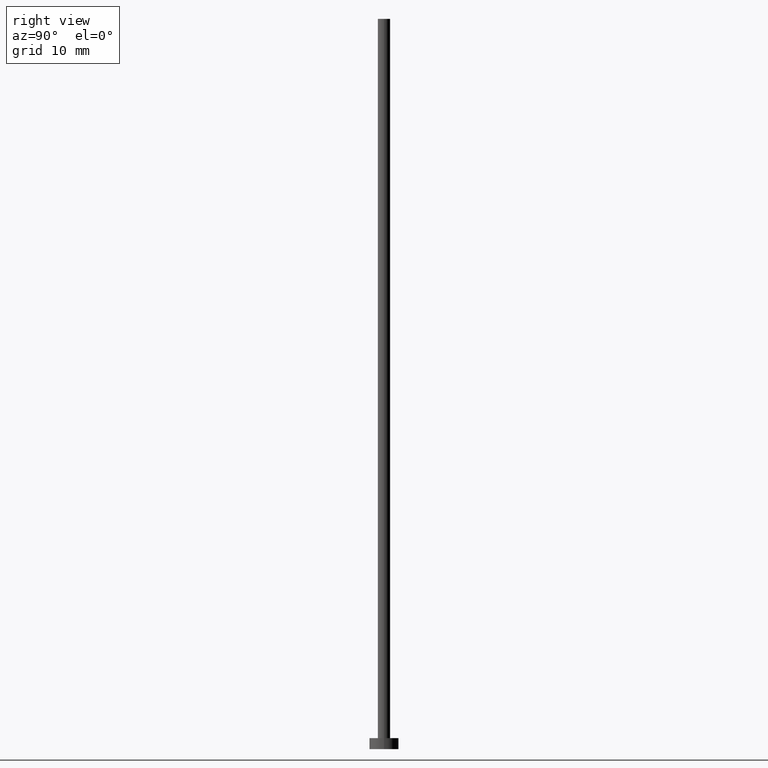
[diagram: clean part render]
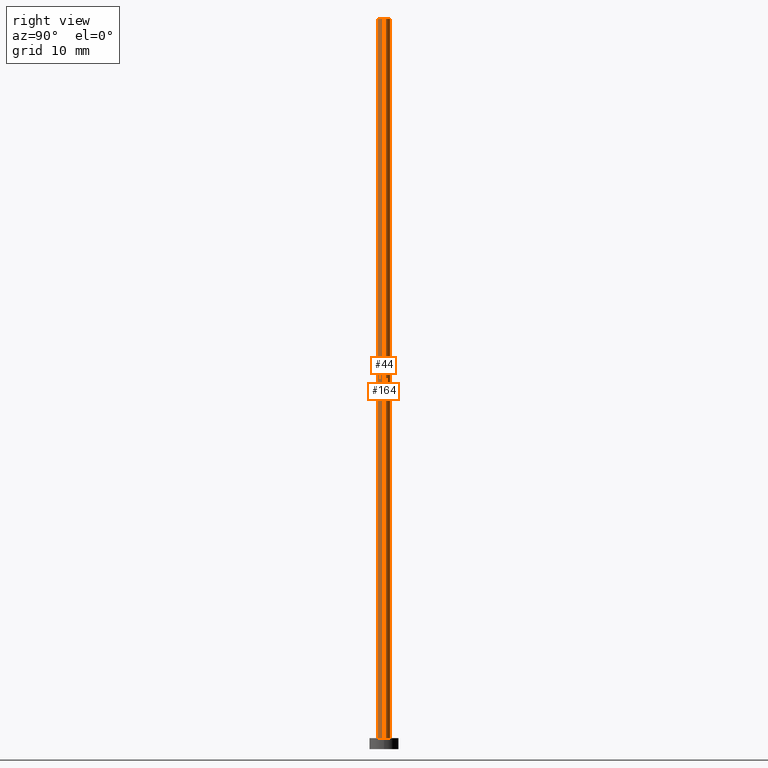
[diagram: same view with one multi-face feature highlighted, each face labeled with its STEP entity id]
A machine part, right view. The highlighted faces form ONE feature: a constant-radius fillet chain: 2 tangent blend faces with common blend radius 0.85 mm. The faces share edges in the B-rep.
Their STEP definitions:
[1] entity #44 (Cylinder):
#8 = CARTESIAN_POINT ( 'NONE',  ( 0.8499999999999999778, 1.040949779275250140E-16, 100.0000000000000000 ) ) ;
#13 = EDGE_LOOP ( 'NONE', ( #127, #93, #165, #30 ) ) ;
#20 = DIRECTION ( 'NONE',  ( 1.000000000000000000, 0.000000000000000000, 0.000000000000000000 ) ) ;
#21 = EDGE_CURVE ( 'NONE', #131, #50, #106, .T. ) ;
#30 = ORIENTED_EDGE ( 'NONE', *, *, #89, .T. ) ;
#31 = AXIS2_PLACEMENT_3D ( 'NONE', #156, #157, #20 ) ;
#36 = DIRECTION ( 'NONE',  ( -0.000000000000000000, -0.000000000000000000, -1.000000000000000000 ) ) ;
#38 = DIRECTION ( 'NONE',  ( 1.000000000000000000, 0.000000000000000000, 0.000000000000000000 ) ) ;
#39 = CARTESIAN_POINT ( 'NONE',  ( 0.8499999999999999778, 1.040949779275250140E-16, 1.500000000000000000 ) ) ;
#44 = ADVANCED_FACE ( 'NONE', ( #174 ), #190, .T. ) ;
#50 = VERTEX_POINT ( 'NONE', #39 ) ;
#59 = CIRCLE ( 'NONE', #80, 0.8499999999999999778 ) ;
#65 = VECTOR ( 'NONE', #91, 1000.000000000000000 ) ;
#80 = AXIS2_PLACEMENT_3D ( 'NONE', #115, #140, #38 ) ;
#86 = CARTESIAN_POINT ( 'NONE',  ( -0.8499999999999999778, 0.000000000000000000, 1.500000000000000000 ) ) ;
#89 = EDGE_CURVE ( 'NONE', #248, #50, #59, .T. ) ;
#91 = DIRECTION ( 'NONE',  ( -0.000000000000000000, -0.000000000000000000, -1.000000000000000000 ) ) ;
#93 = ORIENTED_EDGE ( 'NONE', *, *, #160, .F. ) ;
#106 = LINE ( 'NONE', #8, #65 ) ;
#115 = CARTESIAN_POINT ( 'NONE',  ( 0.000000000000000000, 0.000000000000000000, 1.500000000000000000 ) ) ;
#127 = ORIENTED_EDGE ( 'NONE', *, *, #21, .F. ) ;
#131 = VERTEX_POINT ( 'NONE', #193 ) ;
#135 = CARTESIAN_POINT ( 'NONE',  ( -0.8499999999999999778, 0.000000000000000000, 100.0000000000000000 ) ) ;
#140 = DIRECTION ( 'NONE',  ( 0.000000000000000000, 0.000000000000000000, 1.000000000000000000 ) ) ;
#156 = CARTESIAN_POINT ( 'NONE',  ( 0.000000000000000000, 0.000000000000000000, 100.0000000000000000 ) ) ;
#157 = DIRECTION ( 'NONE',  ( 0.000000000000000000, 0.000000000000000000, 1.000000000000000000 ) ) ;
#160 = EDGE_CURVE ( 'NONE', #209, #131, #234, .T. ) ;
#165 = ORIENTED_EDGE ( 'NONE', *, *, #192, .T. ) ;
#174 = FACE_OUTER_BOUND ( 'NONE', #13, .T. ) ;
#177 = CARTESIAN_POINT ( 'NONE',  ( 0.000000000000000000, 0.000000000000000000, 100.0000000000000000 ) ) ;
#188 = AXIS2_PLACEMENT_3D ( 'NONE', #177, #36, #237 ) ;
#190 = CYLINDRICAL_SURFACE ( 'NONE', #188, 0.8499999999999999778 ) ;
#192 = EDGE_CURVE ( 'NONE', #209, #248, #233, .T. ) ;
#193 = CARTESIAN_POINT ( 'NONE',  ( 0.8499999999999999778, 1.040949779275250140E-16, 100.0000000000000000 ) ) ;
#209 = VERTEX_POINT ( 'NONE', #250 ) ;
#226 = VECTOR ( 'NONE', #229, 1000.000000000000000 ) ;
#229 = DIRECTION ( 'NONE',  ( -0.000000000000000000, -0.000000000000000000, -1.000000000000000000 ) ) ;
#233 = LINE ( 'NONE', #135, #226 ) ;
#234 = CIRCLE ( 'NONE', #31, 0.8499999999999999778 ) ;
#237 = DIRECTION ( 'NONE',  ( -1.000000000000000000, 0.000000000000000000, 0.000000000000000000 ) ) ;
#248 = VERTEX_POINT ( 'NONE', #86 ) ;
#250 = CARTESIAN_POINT ( 'NONE',  ( -0.8499999999999999778, 0.000000000000000000, 100.0000000000000000 ) ) ;
[2] entity #164 (Cylinder):
#8 = CARTESIAN_POINT ( 'NONE',  ( 0.8499999999999999778, 1.040949779275250140E-16, 100.0000000000000000 ) ) ;
#11 = EDGE_LOOP ( 'NONE', ( #133, #186, #75, #222 ) ) ;
#21 = EDGE_CURVE ( 'NONE', #131, #50, #106, .T. ) ;
#39 = CARTESIAN_POINT ( 'NONE',  ( 0.8499999999999999778, 1.040949779275250140E-16, 1.500000000000000000 ) ) ;
#43 = CARTESIAN_POINT ( 'NONE',  ( 0.000000000000000000, 0.000000000000000000, 100.0000000000000000 ) ) ;
#48 = AXIS2_PLACEMENT_3D ( 'NONE', #214, #56, #79 ) ;
#50 = VERTEX_POINT ( 'NONE', #39 ) ;
#56 = DIRECTION ( 'NONE',  ( -0.000000000000000000, -0.000000000000000000, -1.000000000000000000 ) ) ;
#65 = VECTOR ( 'NONE', #91, 1000.000000000000000 ) ;
#75 = ORIENTED_EDGE ( 'NONE', *, *, #141, .T. ) ;
#79 = DIRECTION ( 'NONE',  ( -1.000000000000000000, 0.000000000000000000, 0.000000000000000000 ) ) ;
#81 = DIRECTION ( 'NONE',  ( 1.000000000000000000, 0.000000000000000000, 0.000000000000000000 ) ) ;
#86 = CARTESIAN_POINT ( 'NONE',  ( -0.8499999999999999778, 0.000000000000000000, 1.500000000000000000 ) ) ;
#90 = DIRECTION ( 'NONE',  ( 0.000000000000000000, 0.000000000000000000, 1.000000000000000000 ) ) ;
#91 = DIRECTION ( 'NONE',  ( -0.000000000000000000, -0.000000000000000000, -1.000000000000000000 ) ) ;
#92 = CIRCLE ( 'NONE', #101, 0.8499999999999999778 ) ;
#98 = DIRECTION ( 'NONE',  ( 0.000000000000000000, 0.000000000000000000, 1.000000000000000000 ) ) ;
#99 = CARTESIAN_POINT ( 'NONE',  ( 0.000000000000000000, 0.000000000000000000, 1.500000000000000000 ) ) ;
#101 = AXIS2_PLACEMENT_3D ( 'NONE', #43, #90, #199 ) ;
#106 = LINE ( 'NONE', #8, #65 ) ;
#131 = VERTEX_POINT ( 'NONE', #193 ) ;
#133 = ORIENTED_EDGE ( 'NONE', *, *, #220, .F. ) ;
#135 = CARTESIAN_POINT ( 'NONE',  ( -0.8499999999999999778, 0.000000000000000000, 100.0000000000000000 ) ) ;
#141 = EDGE_CURVE ( 'NONE', #50, #248, #203, .T. ) ;
#155 = AXIS2_PLACEMENT_3D ( 'NONE', #99, #98, #81 ) ;
#158 = CYLINDRICAL_SURFACE ( 'NONE', #48, 0.8499999999999999778 ) ;
#164 = ADVANCED_FACE ( 'NONE', ( #251 ), #158, .T. ) ;
#186 = ORIENTED_EDGE ( 'NONE', *, *, #21, .T. ) ;
#192 = EDGE_CURVE ( 'NONE', #209, #248, #233, .T. ) ;
#193 = CARTESIAN_POINT ( 'NONE',  ( 0.8499999999999999778, 1.040949779275250140E-16, 100.0000000000000000 ) ) ;
#199 = DIRECTION ( 'NONE',  ( 1.000000000000000000, 0.000000000000000000, 0.000000000000000000 ) ) ;
#203 = CIRCLE ( 'NONE', #155, 0.8499999999999999778 ) ;
#209 = VERTEX_POINT ( 'NONE', #250 ) ;
#214 = CARTESIAN_POINT ( 'NONE',  ( 0.000000000000000000, 0.000000000000000000, 100.0000000000000000 ) ) ;
#220 = EDGE_CURVE ( 'NONE', #131, #209, #92, .T. ) ;
#222 = ORIENTED_EDGE ( 'NONE', *, *, #192, .F. ) ;
#226 = VECTOR ( 'NONE', #229, 1000.000000000000000 ) ;
#229 = DIRECTION ( 'NONE',  ( -0.000000000000000000, -0.000000000000000000, -1.000000000000000000 ) ) ;
#233 = LINE ( 'NONE', #135, #226 ) ;
#248 = VERTEX_POINT ( 'NONE', #86 ) ;
#250 = CARTESIAN_POINT ( 'NONE',  ( -0.8499999999999999778, 0.000000000000000000, 100.0000000000000000 ) ) ;
#251 = FACE_OUTER_BOUND ( 'NONE', #11, .T. ) ;